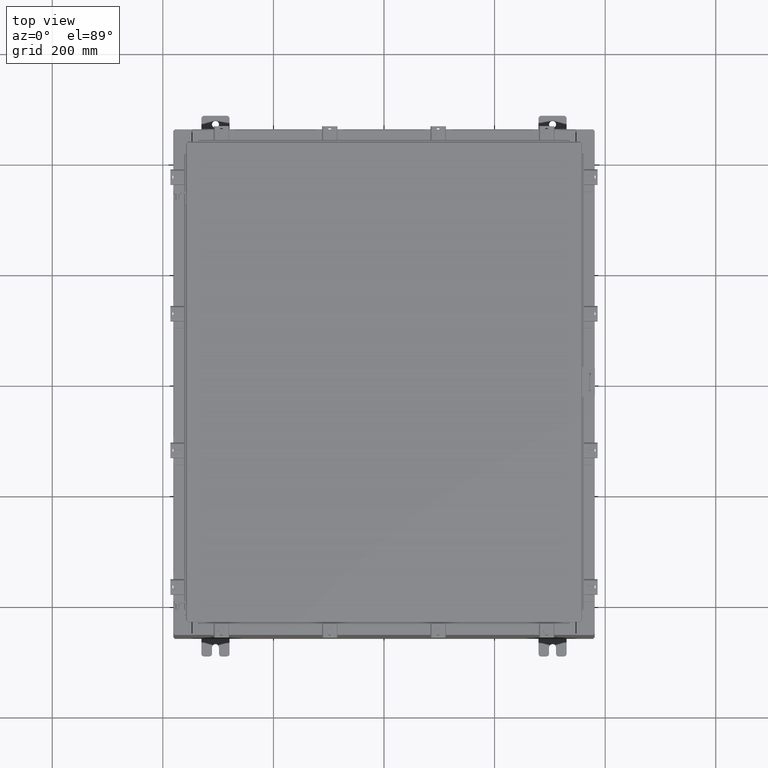
[diagram: clean part render]
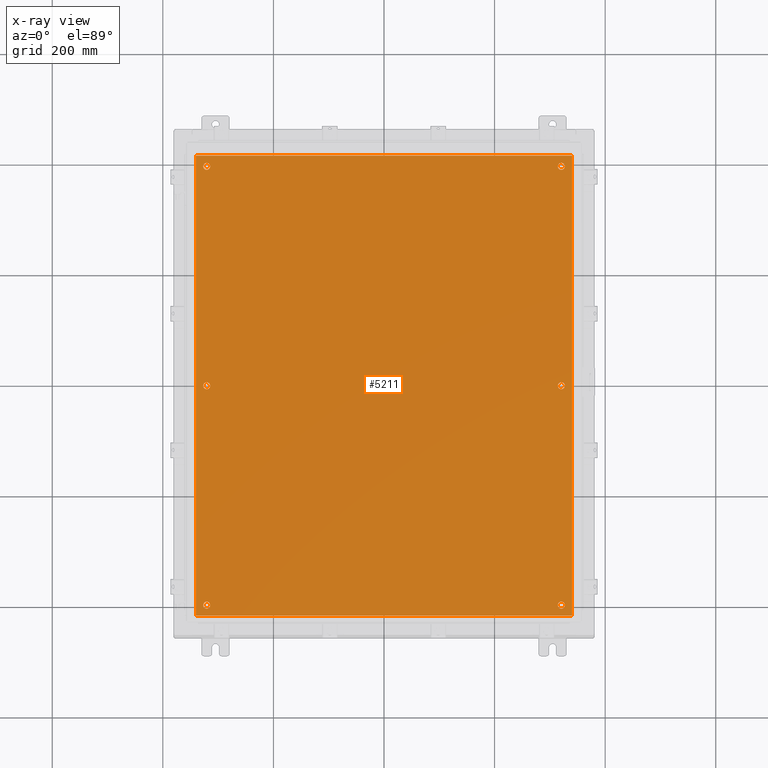
[diagram: x-ray — body ghosted, one internal face saturated and labeled with its STEP entity id]
A machine part, top view, then the same camera in x-ray: the body is ghosted and one INTERNAL B-rep face — a face not visible from any outside direction — is saturated and labeled: STEP entity #5211.
In plain terms, the highlighted planar face has unit normal (0, 0, -1).
Its self-contained STEP definition (entity closure, byte-faithful):
#101 = ORIENTED_EDGE ( 'NONE', *, *, #13211, .T. ) ;
#381 = ORIENTED_EDGE ( 'NONE', *, *, #13814, .F. ) ;
#455 = DIRECTION ( 'NONE',  ( 1.000000000000000000, -0.0000000000000000000, -0.0000000000000000000 ) ) ;
#583 = CARTESIAN_POINT ( 'NONE',  ( 12.62500000000000400, 15.62500000000000400, -0.1039999999999999800 ) ) ;
#715 = CARTESIAN_POINT ( 'NONE',  ( 12.87500000000000500, 15.62500000000000400, -0.1039999999999999800 ) ) ;
#737 = DIRECTION ( 'NONE',  ( -1.000000000000000000, 0.0000000000000000000, 0.0000000000000000000 ) ) ;
#805 = VERTEX_POINT ( 'NONE', #18664 ) ;
#818 = FACE_BOUND ( 'NONE', #18356, .T. ) ;
#863 = CIRCLE ( 'NONE', #14975, 0.2500000000000008900 ) ;
#890 = CIRCLE ( 'NONE', #15278, 0.2500000000000008900 ) ;
#916 = CARTESIAN_POINT ( 'NONE',  ( 12.62500000000000200, 3.355087480100814800E-015, -0.1039999999999999800 ) ) ;
#1371 = CARTESIAN_POINT ( 'NONE',  ( -13.38300000000000300, -16.38299999999999900, -0.1040000000000020100 ) ) ;
#1515 = CIRCLE ( 'NONE', #2053, 0.2500000000000008900 ) ;
#1600 = ORIENTED_EDGE ( 'NONE', *, *, #1853, .T. ) ;
#1853 = EDGE_CURVE ( 'NONE', #22616, #23979, #17102, .T. ) ;
#2001 = EDGE_CURVE ( 'NONE', #16664, #17558, #4089, .T. ) ;
#2029 = AXIS2_PLACEMENT_3D ( 'NONE', #10551, #23732, #12449 ) ;
#2053 = AXIS2_PLACEMENT_3D ( 'NONE', #13905, #2547, #15798 ) ;
#2231 = CARTESIAN_POINT ( 'NONE',  ( -13.38300000000000300, 16.38299999999998800, -0.1040000000000063800 ) ) ;
#2394 = EDGE_CURVE ( 'NONE', #16943, #19647, #16494, .T. ) ;
#2490 = DIRECTION ( 'NONE',  ( -1.000000000000000000, 0.0000000000000000000, 0.0000000000000000000 ) ) ;
#2519 = CARTESIAN_POINT ( 'NONE',  ( 13.50000000000000000, 16.38299999999999900, -0.1040000000000009100 ) ) ;
#2547 = DIRECTION ( 'NONE',  ( -0.0000000000000000000, -0.0000000000000000000, 1.000000000000000000 ) ) ;
#2609 = CARTESIAN_POINT ( 'NONE',  ( 12.62500000000000400, -15.62500000000000400, -0.1039999999999999800 ) ) ;
#2715 = DIRECTION ( 'NONE',  ( 0.0000000000000000000, 1.000000000000000000, 0.0000000000000000000 ) ) ;
#2747 = ORIENTED_EDGE ( 'NONE', *, *, #18398, .T. ) ;
#2828 = DIRECTION ( 'NONE',  ( -1.000000000000000000, 0.0000000000000000000, 0.0000000000000000000 ) ) ;
#3136 = ORIENTED_EDGE ( 'NONE', *, *, #21225, .T. ) ;
#3293 = ORIENTED_EDGE ( 'NONE', *, *, #2394, .T. ) ;
#3580 = VECTOR ( 'NONE', #23276, 39.37007874015748100 ) ;
#3738 = AXIS2_PLACEMENT_3D ( 'NONE', #916, #14183, #2828 ) ;
#3801 = CARTESIAN_POINT ( 'NONE',  ( -12.37500000000000400, 15.62500000000000400, -0.1039999999999999800 ) ) ;
#3807 = EDGE_LOOP ( 'NONE', ( #16081, #13566, #381, #24138 ) ) ;
#4089 = CIRCLE ( 'NONE', #2029, 0.2500000000000008900 ) ;
#4520 = DIRECTION ( 'NONE',  ( -1.000000000000000000, 0.0000000000000000000, 0.0000000000000000000 ) ) ;
#4645 = DIRECTION ( 'NONE',  ( -0.0000000000000000000, -0.0000000000000000000, 1.000000000000000000 ) ) ;
#4647 = DIRECTION ( 'NONE',  ( 0.0000000000000000000, -1.000000000000000000, 0.0000000000000000000 ) ) ;
#5187 = CARTESIAN_POINT ( 'NONE',  ( 12.62500000000000200, 3.355087480100814800E-015, -0.1039999999999999800 ) ) ;
#5211 = ADVANCED_FACE ( 'NONE', ( #818, #5869, #20378, #20976, #15358, #10334, #5283 ), #15968, .T. ) ;
#5283 = FACE_OUTER_BOUND ( 'NONE', #3807, .T. ) ;
#5869 = FACE_BOUND ( 'NONE', #23080, .T. ) ;
#6176 = EDGE_CURVE ( 'NONE', #24048, #22288, #20175, .T. ) ;
#6271 = DIRECTION ( 'NONE',  ( -0.0000000000000000000, -0.0000000000000000000, 1.000000000000000000 ) ) ;
#6373 = ORIENTED_EDGE ( 'NONE', *, *, #23933, .T. ) ;
#6396 = CIRCLE ( 'NONE', #15753, 0.2500000000000008900 ) ;
#6427 = EDGE_CURVE ( 'NONE', #11407, #8255, #890, .T. ) ;
#6901 = CARTESIAN_POINT ( 'NONE',  ( -12.87500000000000500, 15.62500000000000400, -0.1039999999999999800 ) ) ;
#6977 = EDGE_CURVE ( 'NONE', #23979, #22616, #863, .T. ) ;
#7082 = DIRECTION ( 'NONE',  ( -1.000000000000000000, 0.0000000000000000000, 0.0000000000000000000 ) ) ;
#7175 = AXIS2_PLACEMENT_3D ( 'NONE', #17603, #6271, #19518 ) ;
#7287 = VERTEX_POINT ( 'NONE', #22389 ) ;
#7471 = CIRCLE ( 'NONE', #21644, 0.2500000000000008900 ) ;
#7522 = VERTEX_POINT ( 'NONE', #21316 ) ;
#7647 = EDGE_LOOP ( 'NONE', ( #17077, #1600 ) ) ;
#7938 = DIRECTION ( 'NONE',  ( -0.0000000000000000000, -0.0000000000000000000, 1.000000000000000000 ) ) ;
#7998 = ORIENTED_EDGE ( 'NONE', *, *, #18748, .T. ) ;
#8162 = CARTESIAN_POINT ( 'NONE',  ( 12.62500000000000400, -15.62500000000000400, -0.1039999999999999800 ) ) ;
#8255 = VERTEX_POINT ( 'NONE', #17725 ) ;
#8264 = EDGE_CURVE ( 'NONE', #805, #7522, #12691, .T. ) ;
#8465 = CARTESIAN_POINT ( 'NONE',  ( -13.38300000000000300, 16.38299999999998800, -0.1040000000000063800 ) ) ;
#8820 = CARTESIAN_POINT ( 'NONE',  ( -12.62500000000000200, 2.628543122537475400E-016, -0.1039999999999999800 ) ) ;
#8870 = AXIS2_PLACEMENT_3D ( 'NONE', #583, #13844, #2490 ) ;
#8879 = LINE ( 'NONE', #12182, #13323 ) ;
#8993 = CARTESIAN_POINT ( 'NONE',  ( 13.38299999999999900, -16.38300000000000300, -0.1040000000000009100 ) ) ;
#9406 = CARTESIAN_POINT ( 'NONE',  ( -12.87500000000000400, 2.934704822324311800E-016, -0.1039999999999999800 ) ) ;
#9683 = CARTESIAN_POINT ( 'NONE',  ( -12.87500000000000500, -15.62500000000000400, -0.1039999999999999800 ) ) ;
#9703 = VERTEX_POINT ( 'NONE', #1371 ) ;
#9722 = VECTOR ( 'NONE', #4647, 39.37007874015748100 ) ;
#10045 = VECTOR ( 'NONE', #455, 39.37007874015748100 ) ;
#10087 = DIRECTION ( 'NONE',  ( -1.000000000000000000, 0.0000000000000000000, 0.0000000000000000000 ) ) ;
#10334 = FACE_BOUND ( 'NONE', #24350, .T. ) ;
#10509 = EDGE_LOOP ( 'NONE', ( #7998, #15087 ) ) ;
#10551 = CARTESIAN_POINT ( 'NONE',  ( -12.62500000000000400, -15.62500000000000400, -0.1039999999999999800 ) ) ;
#10730 = DIRECTION ( 'NONE',  ( -1.000000000000000000, 0.0000000000000000000, 0.0000000000000000000 ) ) ;
#10828 = AXIS2_PLACEMENT_3D ( 'NONE', #21665, #23556, #12271 ) ;
#11407 = VERTEX_POINT ( 'NONE', #9406 ) ;
#12108 = DIRECTION ( 'NONE',  ( -0.0000000000000000000, -0.0000000000000000000, 1.000000000000000000 ) ) ;
#12182 = CARTESIAN_POINT ( 'NONE',  ( 13.38299999999999900, -16.38300000000000300, -0.1040000000000009100 ) ) ;
#12271 = DIRECTION ( 'NONE',  ( -1.000000000000000000, 0.0000000000000000000, -0.0000000000000000000 ) ) ;
#12449 = DIRECTION ( 'NONE',  ( -1.000000000000000000, 0.0000000000000000000, 0.0000000000000000000 ) ) ;
#12689 = ORIENTED_EDGE ( 'NONE', *, *, #2001, .T. ) ;
#12691 = CIRCLE ( 'NONE', #3738, 0.2500000000000008900 ) ;
#13211 = EDGE_CURVE ( 'NONE', #19647, #16943, #1515, .T. ) ;
#13307 = CARTESIAN_POINT ( 'NONE',  ( 12.37500000000000400, 15.62500000000000400, -0.1039999999999999800 ) ) ;
#13323 = VECTOR ( 'NONE', #2715, 39.37007874015748100 ) ;
#13566 = ORIENTED_EDGE ( 'NONE', *, *, #17508, .F. ) ;
#13713 = CARTESIAN_POINT ( 'NONE',  ( -13.50000000000000000, -16.38299999999999900, -0.1040000000000020100 ) ) ;
#13814 = EDGE_CURVE ( 'NONE', #7287, #14484, #19288, .T. ) ;
#13844 = DIRECTION ( 'NONE',  ( -0.0000000000000000000, -0.0000000000000000000, 1.000000000000000000 ) ) ;
#13905 = CARTESIAN_POINT ( 'NONE',  ( -12.62500000000000400, 15.62500000000000400, -0.1039999999999999800 ) ) ;
#14183 = DIRECTION ( 'NONE',  ( -0.0000000000000000000, -0.0000000000000000000, 1.000000000000000000 ) ) ;
#14484 = VERTEX_POINT ( 'NONE', #2231 ) ;
#14968 = AXIS2_PLACEMENT_3D ( 'NONE', #5187, #18423, #7082 ) ;
#14975 = AXIS2_PLACEMENT_3D ( 'NONE', #15978, #4645, #17873 ) ;
#15087 = ORIENTED_EDGE ( 'NONE', *, *, #6176, .T. ) ;
#15278 = AXIS2_PLACEMENT_3D ( 'NONE', #8820, #22028, #10730 ) ;
#15358 = FACE_BOUND ( 'NONE', #7647, .T. ) ;
#15753 = AXIS2_PLACEMENT_3D ( 'NONE', #2609, #15860, #4520 ) ;
#15798 = DIRECTION ( 'NONE',  ( -1.000000000000000000, 0.0000000000000000000, 0.0000000000000000000 ) ) ;
#15860 = DIRECTION ( 'NONE',  ( -0.0000000000000000000, -0.0000000000000000000, 1.000000000000000000 ) ) ;
#15968 = PLANE ( 'NONE',  #10828 ) ;
#15978 = CARTESIAN_POINT ( 'NONE',  ( 12.62500000000000400, 15.62500000000000400, -0.1039999999999999800 ) ) ;
#16081 = ORIENTED_EDGE ( 'NONE', *, *, #16652, .F. ) ;
#16156 = EDGE_CURVE ( 'NONE', #17040, #7287, #8879, .T. ) ;
#16494 = CIRCLE ( 'NONE', #21845, 0.2500000000000008900 ) ;
#16652 = EDGE_CURVE ( 'NONE', #9703, #17040, #20095, .T. ) ;
#16664 = VERTEX_POINT ( 'NONE', #9683 ) ;
#16943 = VERTEX_POINT ( 'NONE', #6901 ) ;
#17040 = VERTEX_POINT ( 'NONE', #8993 ) ;
#17077 = ORIENTED_EDGE ( 'NONE', *, *, #6977, .T. ) ;
#17102 = CIRCLE ( 'NONE', #8870, 0.2500000000000008900 ) ;
#17351 = CIRCLE ( 'NONE', #14968, 0.2500000000000008900 ) ;
#17508 = EDGE_CURVE ( 'NONE', #14484, #9703, #19177, .T. ) ;
#17558 = VERTEX_POINT ( 'NONE', #18045 ) ;
#17603 = CARTESIAN_POINT ( 'NONE',  ( -12.62500000000000400, -15.62500000000000400, -0.1039999999999999800 ) ) ;
#17689 = EDGE_LOOP ( 'NONE', ( #6373, #12689 ) ) ;
#17725 = CARTESIAN_POINT ( 'NONE',  ( -12.37500000000000200, 2.628543122537475400E-016, -0.1039999999999999800 ) ) ;
#17873 = DIRECTION ( 'NONE',  ( -1.000000000000000000, 0.0000000000000000000, 0.0000000000000000000 ) ) ;
#18045 = CARTESIAN_POINT ( 'NONE',  ( -12.37500000000000400, -15.62500000000000400, -0.1039999999999999800 ) ) ;
#18356 = EDGE_LOOP ( 'NONE', ( #21541, #2747 ) ) ;
#18398 = EDGE_CURVE ( 'NONE', #7522, #805, #17351, .T. ) ;
#18423 = DIRECTION ( 'NONE',  ( -0.0000000000000000000, -0.0000000000000000000, 1.000000000000000000 ) ) ;
#18608 = CIRCLE ( 'NONE', #7175, 0.2500000000000008900 ) ;
#18664 = CARTESIAN_POINT ( 'NONE',  ( 12.87500000000000400, 3.355087480100814800E-015, -0.1039999999999999800 ) ) ;
#18748 = EDGE_CURVE ( 'NONE', #22288, #24048, #6396, .T. ) ;
#19177 = LINE ( 'NONE', #8465, #9722 ) ;
#19282 = CARTESIAN_POINT ( 'NONE',  ( -12.62500000000000400, 15.62500000000000400, -0.1039999999999999800 ) ) ;
#19288 = LINE ( 'NONE', #2519, #3580 ) ;
#19456 = ORIENTED_EDGE ( 'NONE', *, *, #6427, .T. ) ;
#19518 = DIRECTION ( 'NONE',  ( -1.000000000000000000, 0.0000000000000000000, 0.0000000000000000000 ) ) ;
#19647 = VERTEX_POINT ( 'NONE', #3801 ) ;
#19853 = CARTESIAN_POINT ( 'NONE',  ( 12.37500000000000400, -15.62500000000000400, -0.1039999999999999800 ) ) ;
#19925 = CARTESIAN_POINT ( 'NONE',  ( 12.87500000000000500, -15.62500000000000400, -0.1039999999999999800 ) ) ;
#20095 = LINE ( 'NONE', #13713, #10045 ) ;
#20175 = CIRCLE ( 'NONE', #20814, 0.2500000000000008900 ) ;
#20378 = FACE_BOUND ( 'NONE', #17689, .T. ) ;
#20814 = AXIS2_PLACEMENT_3D ( 'NONE', #8162, #21374, #10087 ) ;
#20976 = FACE_BOUND ( 'NONE', #10509, .T. ) ;
#21164 = DIRECTION ( 'NONE',  ( -1.000000000000000000, 0.0000000000000000000, 0.0000000000000000000 ) ) ;
#21225 = EDGE_CURVE ( 'NONE', #8255, #11407, #7471, .T. ) ;
#21316 = CARTESIAN_POINT ( 'NONE',  ( 12.37500000000000200, 3.385703650079498500E-015, -0.1039999999999999800 ) ) ;
#21374 = DIRECTION ( 'NONE',  ( -0.0000000000000000000, -0.0000000000000000000, 1.000000000000000000 ) ) ;
#21541 = ORIENTED_EDGE ( 'NONE', *, *, #8264, .T. ) ;
#21644 = AXIS2_PLACEMENT_3D ( 'NONE', #23407, #12108, #737 ) ;
#21665 = CARTESIAN_POINT ( 'NONE',  ( 0.0000000000000000000, 0.0000000000000000000, -0.1039999999999999800 ) ) ;
#21845 = AXIS2_PLACEMENT_3D ( 'NONE', #19282, #7938, #21164 ) ;
#22028 = DIRECTION ( 'NONE',  ( -0.0000000000000000000, -0.0000000000000000000, 1.000000000000000000 ) ) ;
#22288 = VERTEX_POINT ( 'NONE', #19925 ) ;
#22389 = CARTESIAN_POINT ( 'NONE',  ( 13.38299999999999900, 16.38300000000000300, -0.1040000000000009100 ) ) ;
#22616 = VERTEX_POINT ( 'NONE', #13307 ) ;
#23080 = EDGE_LOOP ( 'NONE', ( #3136, #19456 ) ) ;
#23276 = DIRECTION ( 'NONE',  ( -1.000000000000000000, -0.0000000000000000000, -0.0000000000000000000 ) ) ;
#23407 = CARTESIAN_POINT ( 'NONE',  ( -12.62500000000000200, 2.628543122537475400E-016, -0.1039999999999999800 ) ) ;
#23556 = DIRECTION ( 'NONE',  ( 0.0000000000000000000, 0.0000000000000000000, -1.000000000000000000 ) ) ;
#23732 = DIRECTION ( 'NONE',  ( -0.0000000000000000000, -0.0000000000000000000, 1.000000000000000000 ) ) ;
#23933 = EDGE_CURVE ( 'NONE', #17558, #16664, #18608, .T. ) ;
#23979 = VERTEX_POINT ( 'NONE', #715 ) ;
#24048 = VERTEX_POINT ( 'NONE', #19853 ) ;
#24138 = ORIENTED_EDGE ( 'NONE', *, *, #16156, .F. ) ;
#24350 = EDGE_LOOP ( 'NONE', ( #101, #3293 ) ) ;